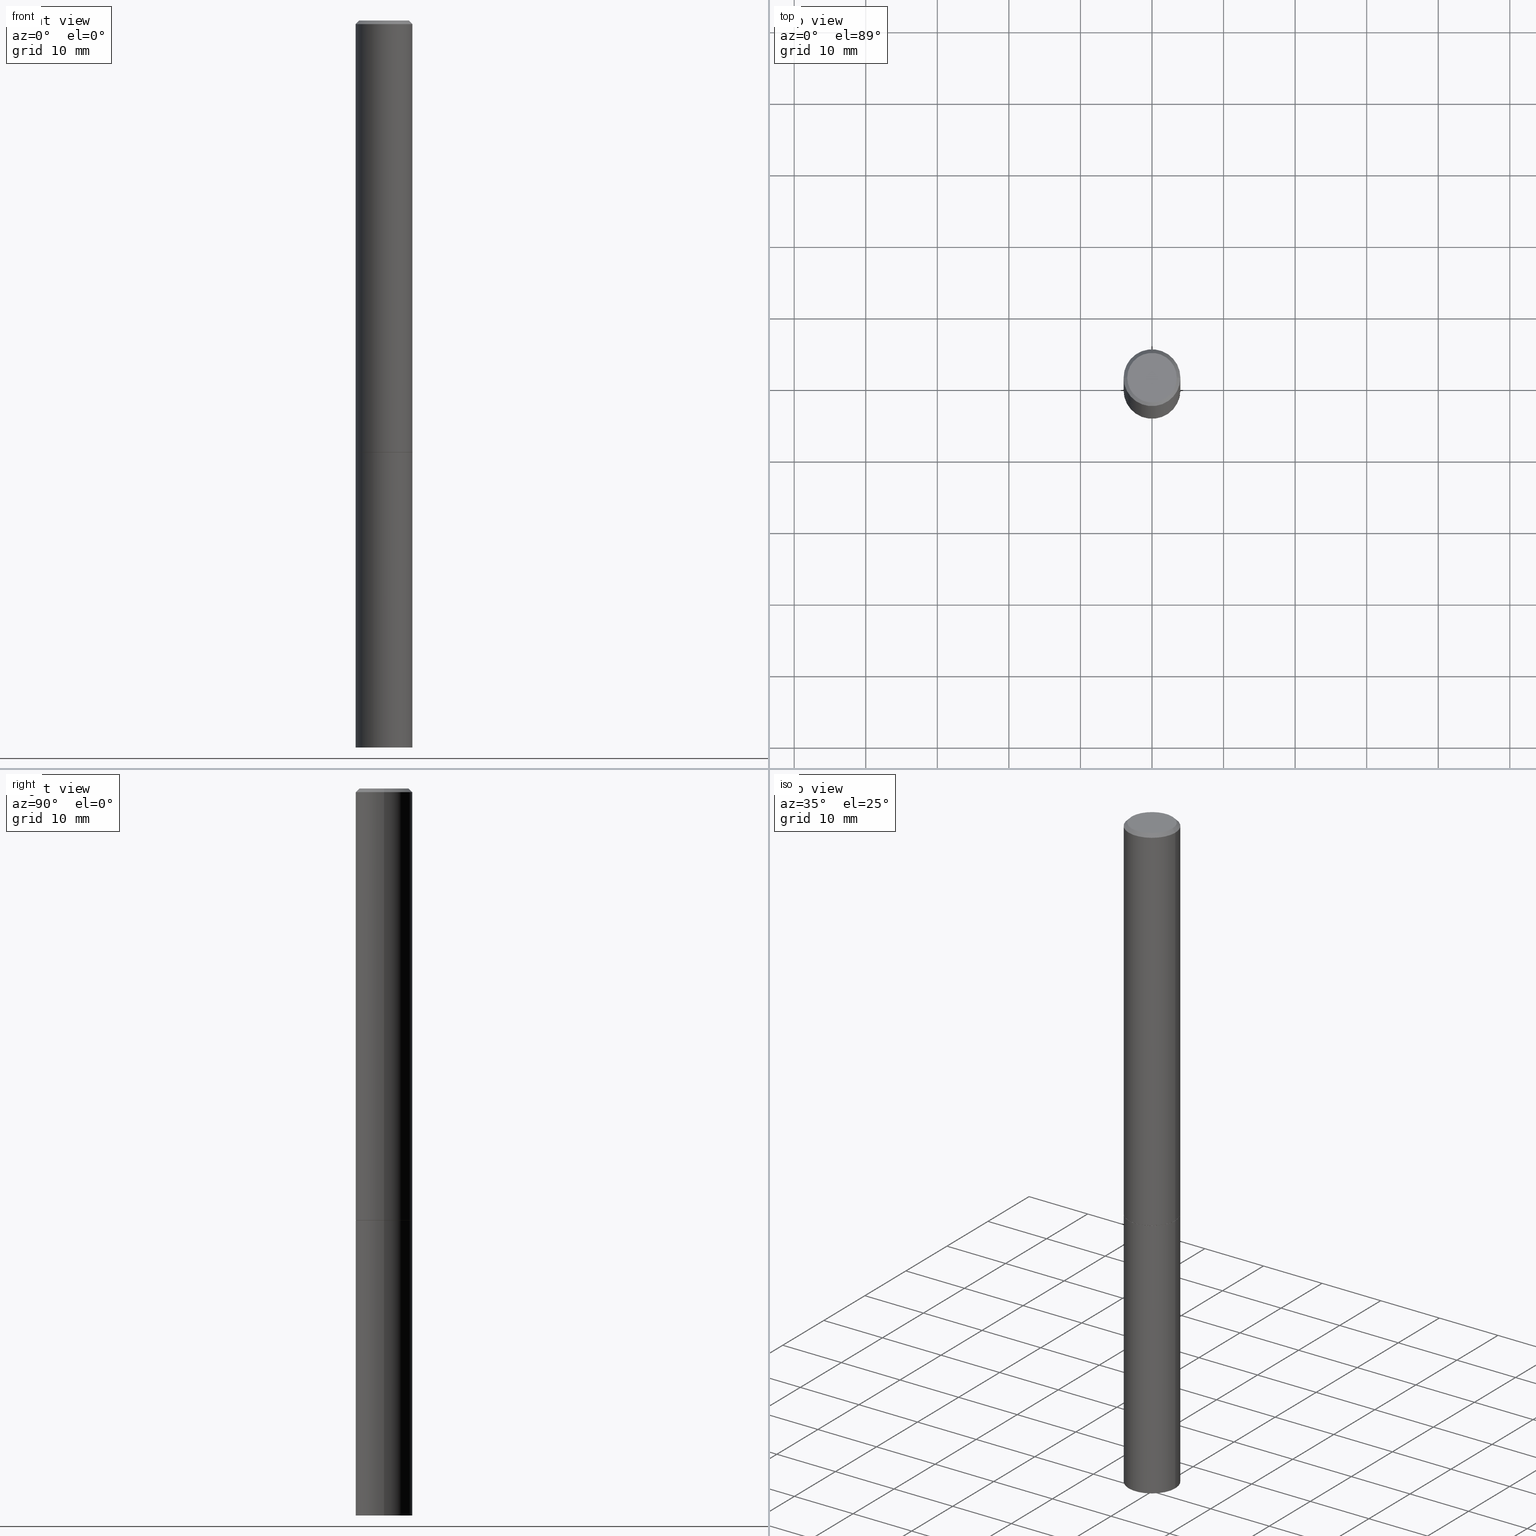
[diagram: canonical four-view strip — front | top / right | iso, engineering-drawing reading convention]
A machine part, canonical four-view strip (front | top / right | iso — engineering-drawing reading convention). The complete STEP part file that produces these views, byte-faithful:
ISO-10303-21;
HEADER;
FILE_DESCRIPTION (( 'STEP AP203' ),
    '1' );
FILE_NAME ('31883.STEP',
    '2023-03-21T20:35:39',
    ( '' ),
    ( '' ),
    'SwSTEP 2.0',
    'SolidWorks 2022',
    '' );
FILE_SCHEMA (( 'CONFIG_CONTROL_DESIGN' ));
ENDSEC;

DATA;
#1 = EDGE_LOOP ( 'NONE', ( #173, #229, #254, #176 ) ) ;
#2 = CARTESIAN_POINT ( 'NONE',  ( 5.807988414689699417E-29, -8.292268179752470118E-15, -2.375000000000000000 ) ) ;
#3 = CALENDAR_DATE ( 2023, 21, 3 ) ;
#4 = CONICAL_SURFACE ( 'NONE', #285, 751.2258538476485228, 1.518436449235072372 ) ;
#5 = DIRECTION ( 'NONE',  ( 1.000000000000000000, -6.982962677686266711E-15, 4.876176775795936353E-29 ) ) ;
#6 = ADVANCED_FACE ( 'NONE', ( #282 ), #321, .T. ) ;
#7 = LINE ( 'NONE', #181, #83 ) ;
#8 = EDGE_CURVE ( 'NONE', #362, #12, #125, .T. ) ;
#9 = DIRECTION ( 'NONE',  ( 2.445468806185136597E-29, -3.491481338843145583E-15, -1.000000000000000000 ) ) ;
#10 = EDGE_LOOP ( 'NONE', ( #29, #292, #360 ) ) ;
#11 = LINE ( 'NONE', #160, #216 ) ;
#12 = VERTEX_POINT ( 'NONE', #178 ) ;
#13 = LINE ( 'NONE', #117, #54 ) ;
#14 = APPROVAL_PERSON_ORGANIZATION ( #299, #59, #137 ) ;
#15 = CC_DESIGN_SECURITY_CLASSIFICATION ( #139, ( #50 ) ) ;
#16 = DIRECTION ( 'NONE',  ( -2.445468806185136597E-29, 3.491481338843145583E-15, 1.000000000000000000 ) ) ;
#17 = DIRECTION ( 'NONE',  ( 1.000000000000000000, -6.982962677686268288E-15, 0.000000000000000000 ) ) ;
#18 = DIRECTION ( 'NONE',  ( -0.7071067811865232589, 7.493145998870265808E-15, 0.7071067811865715536 ) ) ;
#19 = ORIENTED_EDGE ( 'NONE', *, *, #77, .T. ) ;
#20 =( CONVERSION_BASED_UNIT ( 'INCH', #325 ) LENGTH_UNIT ( ) NAMED_UNIT ( #339 ) );
#21 = ORIENTED_EDGE ( 'NONE', *, *, #153, .F. ) ;
#22 = DIRECTION ( 'NONE',  ( 1.000000000000000000, -6.982962677686266711E-15, 4.876176775795936353E-29 ) ) ;
#23 = CIRCLE ( 'NONE', #383, 0.1552499999999999991 ) ;
#24 = CLOSED_SHELL ( 'NONE', ( #100, #247, #264, #273, #49 ) ) ;
#25 = DIRECTION ( 'NONE',  ( -0.9986295347545742773, 6.790662755453662155E-15, -0.05233595624293820026 ) ) ;
#26 = APPROVAL_STATUS ( 'not_yet_approved' ) ;
#27 = APPLICATION_PROTOCOL_DEFINITION ( 'international standard', 'config_control_design', 1994, #316 ) ;
#28 = DIRECTION ( 'NONE',  ( 1.000000000000000000, -6.982962677686268288E-15, 0.000000000000000000 ) ) ;
#29 = ORIENTED_EDGE ( 'NONE', *, *, #122, .F. ) ;
#30 = CARTESIAN_POINT ( 'NONE',  ( -0.1562500000000000000, 1.110223024625156540E-15, -7.685836078523291160E-30 ) ) ;
#31 = CC_DESIGN_PERSON_AND_ORGANIZATION_ASSIGNMENT ( #38, #334, ( #50 ) ) ;
#32 = SECURITY_CLASSIFICATION_LEVEL ( 'unclassified' ) ;
#33 = FACE_OUTER_BOUND ( 'NONE', #382, .T. ) ;
#34 = CIRCLE ( 'NONE', #241, 0.1562500000000000000 ) ;
#35 = CC_DESIGN_APPROVAL ( #353, ( #139 ) ) ;
#36 = DIRECTION ( 'NONE',  ( -2.438088387897960049E-29, 3.491481338843145188E-15, 1.000000000000000000 ) ) ;
#37 = CONICAL_SURFACE ( 'NONE', #107, 0.1552499999999999991, 0.7853981633974141952 ) ;
#38 = PERSON_AND_ORGANIZATION ( #310, #204 ) ;
#39 = EDGE_CURVE ( 'NONE', #138, #132, #63, .T. ) ;
#40 =( GEOMETRIC_REPRESENTATION_CONTEXT ( 3 ) GLOBAL_UNCERTAINTY_ASSIGNED_CONTEXT ( ( #358 ) ) GLOBAL_UNIT_ASSIGNED_CONTEXT ( ( #20, #133, #111 ) ) REPRESENTATION_CONTEXT ( 'NONE', 'WORKASPACE' ) );
#41 = CARTESIAN_POINT ( 'NONE',  ( 0.000000000000000000, 0.000000000000000000, 0.000000000000000000 ) ) ;
#42 = PRODUCT ( '31883', '31883', '', ( #174 ) ) ;
#43 = ORIENTED_EDGE ( 'NONE', *, *, #332, .T. ) ;
#44 = CARTESIAN_POINT ( 'NONE',  ( 9.762053498228131430E-29, -1.393704315311519671E-14, -3.991811284487025713 ) ) ;
#45 = LINE ( 'NONE', #130, #348 ) ;
#46 = CARTESIAN_POINT ( 'NONE',  ( 0.000000000000000000, 0.000000000000000000, 0.000000000000000000 ) ) ;
#47 = DIRECTION ( 'NONE',  ( 1.000000000000000000, -6.982962677686262766E-15, 0.000000000000000000 ) ) ;
#48 = ORIENTED_EDGE ( 'NONE', *, *, #346, .T. ) ;
#49 = ADVANCED_FACE ( 'NONE', ( #33 ), #108, .F. ) ;
#50 = PRODUCT_DEFINITION_FORMATION_WITH_SPECIFIED_SOURCE ( 'ANY', '', #42, .NOT_KNOWN. ) ;
#51 = APPLICATION_PROTOCOL_DEFINITION ( 'international standard', 'config_control_design', 1994, #170 ) ;
#52 = LINE ( 'NONE', #213, #102 ) ;
#53 = ADVANCED_FACE ( 'NONE', ( #73 ), #235, .F. ) ;
#54 = VECTOR ( 'NONE', #25, 39.37007874015748854 ) ;
#55 = PERSON_AND_ORGANIZATION ( #310, #204 ) ;
#56 = APPROVAL_STATUS ( 'not_yet_approved' ) ;
#57 = CALENDAR_DATE ( 2023, 21, 3 ) ;
#58 = CARTESIAN_POINT ( 'NONE',  ( 2.914548548373064519E-19, -1.393733460796993625E-14, -3.991811284487025713 ) ) ;
#59 = APPROVAL ( #26, 'UNSPECIFIED' ) ;
#60 = COORDINATED_UNIVERSAL_TIME_OFFSET ( 5, 0, .BEHIND. ) ;
#61 = DIRECTION ( 'NONE',  ( -2.445468806185136597E-29, 3.491481338843145583E-15, 1.000000000000000000 ) ) ;
#62 = AXIS2_PLACEMENT_3D ( 'NONE', #123, #373, #161 ) ;
#63 = CIRCLE ( 'NONE', #298, 0.1562499999999997224 ) ;
#64 = EDGE_CURVE ( 'NONE', #132, #138, #288, .T. ) ;
#65 = DIRECTION ( 'NONE',  ( -2.445468806185136597E-29, 3.491481338843145583E-15, 1.000000000000000000 ) ) ;
#66 = ADVANCED_FACE ( 'NONE', ( #318 ), #37, .T. ) ;
#67 = CARTESIAN_POINT ( 'NONE',  ( 0.1562499999999997224, -1.503787816752438098E-14, -4.000000000000000000 ) ) ;
#68 = ORIENTED_EDGE ( 'NONE', *, *, #64, .T. ) ;
#69 = ADVANCED_FACE ( 'NONE', ( #159 ), #352, .F. ) ;
#70 = EDGE_LOOP ( 'NONE', ( #340, #118 ) ) ;
#71 = VECTOR ( 'NONE', #167, 39.37007874015748143 ) ;
#72 = CARTESIAN_POINT ( 'NONE',  ( 5.807988414689699417E-29, -8.292268179752470118E-15, -2.375000000000000000 ) ) ;
#73 = FACE_OUTER_BOUND ( 'NONE', #226, .T. ) ;
#74 = DIRECTION ( 'NONE',  ( 1.000000000000000000, -6.982962677686265922E-15, 4.876176775795935793E-29 ) ) ;
#75 = DIRECTION ( 'NONE',  ( -1.000000000000000000, 6.982962677686265922E-15, -4.876176775795935793E-29 ) ) ;
#76 = CARTESIAN_POINT ( 'NONE',  ( -0.1562499999999998612, 1.110223024625155554E-15, -7.685836078523284153E-30 ) ) ;
#77 = EDGE_CURVE ( 'NONE', #350, #175, #328, .T. ) ;
#78 = DIRECTION ( 'NONE',  ( 1.000000000000000000, -6.982962677686262766E-15, 0.000000000000000000 ) ) ;
#79 = AXIS2_PLACEMENT_3D ( 'NONE', #112, #236, #47 ) ;
#80 = FACE_OUTER_BOUND ( 'NONE', #94, .T. ) ;
#81 = DIRECTION ( 'NONE',  ( 1.000000000000000000, -6.982962677686266711E-15, 4.876176775795936353E-29 ) ) ;
#82 = CARTESIAN_POINT ( 'NONE',  ( 9.781875224740546387E-29, -1.396592535537258233E-14, -4.000000000000000000 ) ) ;
#83 = VECTOR ( 'NONE', #96, 39.37007874015748143 ) ;
#84 = CARTESIAN_POINT ( 'NONE',  ( 0.1362499999999997324, -1.038262645562516152E-15, 6.957025900226682464E-30 ) ) ;
#85 = AXIS2_PLACEMENT_3D ( 'NONE', #82, #347, #297 ) ;
#86 = DIRECTION ( 'NONE',  ( 1.000000000000000000, -6.982962677686268288E-15, 0.000000000000000000 ) ) ;
#87 =( LENGTH_UNIT ( ) NAMED_UNIT ( * ) SI_UNIT ( $, .METRE. ) );
#88 = DIRECTION ( 'NONE',  ( -2.445468806185136597E-29, 3.491481338843145583E-15, 1.000000000000000000 ) ) ;
#89 = ORIENTED_EDGE ( 'NONE', *, *, #281, .F. ) ;
#90 = CC_DESIGN_DATE_AND_TIME_ASSIGNMENT ( #184, #95, ( #139 ) ) ;
#91 = CYLINDRICAL_SURFACE ( 'NONE', #129, 0.1562500000000000000 ) ;
#92 = CIRCLE ( 'NONE', #183, 0.1562500000000000000 ) ;
#93 = PERSON_AND_ORGANIZATION ( #310, #204 ) ;
#94 = EDGE_LOOP ( 'NONE', ( #301, #279, #89, #147 ) ) ;
#95 = DATE_TIME_ROLE ( 'classification_date' ) ;
#96 = DIRECTION ( 'NONE',  ( -0.7071067811865467956, 2.468850131082249172E-15, -0.7071067811865482389 ) ) ;
#97 = ORIENTED_EDGE ( 'NONE', *, *, #345, .T. ) ;
#98 = VERTEX_POINT ( 'NONE', #44 ) ;
#99 = DIRECTION ( 'NONE',  ( 1.000000000000000000, -6.982962677686266711E-15, 4.876176775795936353E-29 ) ) ;
#100 = ADVANCED_FACE ( 'NONE', ( #80 ), #199, .T. ) ;
#101 = CALENDAR_DATE ( 2023, 21, 3 ) ;
#102 = VECTOR ( 'NONE', #124, 39.37007874015748143 ) ;
#103 = CARTESIAN_POINT ( 'NONE',  ( -0.1362499999999997324, 9.863434782231830429E-16, -6.775751096333125871E-30 ) ) ;
#104 = ORIENTED_EDGE ( 'NONE', *, *, #381, .F. ) ;
#105 = APPROVAL ( #56, 'UNSPECIFIED' ) ;
#106 = VECTOR ( 'NONE', #315, 39.37007874015748143 ) ;
#107 = AXIS2_PLACEMENT_3D ( 'NONE', #127, #252, #17 ) ;
#108 = PLANE ( 'NONE',  #120 ) ;
#109 = CARTESIAN_POINT ( 'NONE',  ( 5.805542945883513814E-29, -8.288776698413627111E-15, -2.373999999999999666 ) ) ;
#110 = ORIENTED_EDGE ( 'NONE', *, *, #346, .F. ) ;
#111 =( NAMED_UNIT ( * ) SI_UNIT ( $, .STERADIAN. ) SOLID_ANGLE_UNIT ( ) );
#112 = CARTESIAN_POINT ( 'NONE',  ( 5.807988414689699417E-29, -8.292268179752470118E-15, -2.375000000000000000 ) ) ;
#113 = CARTESIAN_POINT ( 'NONE',  ( -0.1562500000000000000, -1.001887374293736968E-14, -2.375000000000000000 ) ) ;
#114 = CARTESIAN_POINT ( 'NONE',  ( 5.807988414689699417E-29, -8.292268179752470118E-15, -2.375000000000000000 ) ) ;
#115 = CC_DESIGN_DATE_AND_TIME_ASSIGNMENT ( #151, #180, ( #239 ) ) ;
#116 = CARTESIAN_POINT ( 'NONE',  ( 0.1552499999999999991, -9.376373135463264066E-15, -2.375000000000000000 ) ) ;
#117 = CARTESIAN_POINT ( 'NONE',  ( -2.914548546420694445E-19, -1.393733460796993625E-14, -3.991811284487025713 ) ) ;
#118 = ORIENTED_EDGE ( 'NONE', *, *, #363, .T. ) ;
#119 = PERSON_AND_ORGANIZATION ( #310, #204 ) ;
#120 = AXIS2_PLACEMENT_3D ( 'NONE', #224, #230, #322 ) ;
#121 = DIRECTION ( 'NONE',  ( 1.000000000000000000, -6.982962677686262766E-15, 0.000000000000000000 ) ) ;
#122 = EDGE_CURVE ( 'NONE', #98, #175, #368, .T. ) ;
#123 = CARTESIAN_POINT ( 'NONE',  ( 0.000000000000000000, 0.000000000000000000, 0.000000000000000000 ) ) ;
#124 = DIRECTION ( 'NONE',  ( 0.7071067811865467956, -7.319954787623254468E-15, -0.7071067811865482389 ) ) ;
#125 = CIRCLE ( 'NONE', #349, 0.1552499999999999991 ) ;
#126 = CYLINDRICAL_SURFACE ( 'NONE', #62, 0.1562499999999998612 ) ;
#127 = CARTESIAN_POINT ( 'NONE',  ( 5.807988414689699417E-29, -8.292268179752470118E-15, -2.375000000000000000 ) ) ;
#128 = ADVANCED_FACE ( 'NONE', ( #244 ), #126, .T. ) ;
#129 = AXIS2_PLACEMENT_3D ( 'NONE', #41, #166, #22 ) ;
#130 = CARTESIAN_POINT ( 'NONE',  ( -0.1552499999999999991, -7.189150582484915374E-15, -2.375000000000000000 ) ) ;
#131 = ORIENTED_EDGE ( 'NONE', *, *, #64, .F. ) ;
#132 = VERTEX_POINT ( 'NONE', #283 ) ;
#133 =( NAMED_UNIT ( * ) PLANE_ANGLE_UNIT ( ) SI_UNIT ( $, .RADIAN. ) );
#134 = DIRECTION ( 'NONE',  ( -2.445468806185136597E-29, 3.491481338843145583E-15, 1.000000000000000000 ) ) ;
#135 = ORIENTED_EDGE ( 'NONE', *, *, #8, .T. ) ;
#136 = CARTESIAN_POINT ( 'NONE',  ( 5.807988414689699417E-29, -8.292268179752470118E-15, -2.375000000000000000 ) ) ;
#137 = APPROVAL_ROLE ( '' ) ;
#138 = VERTEX_POINT ( 'NONE', #191 ) ;
#139 = SECURITY_CLASSIFICATION ( '', '', #32 ) ;
#140 = CARTESIAN_POINT ( 'NONE',  ( 5.805542945883513814E-29, -8.288776698413627111E-15, -2.373999999999999666 ) ) ;
#141 = DIRECTION ( 'NONE',  ( 1.000000000000000000, -6.982962677686267499E-15, 0.000000000000000000 ) ) ;
#142 = PERSON_AND_ORGANIZATION_ROLE ( 'classification_officer' ) ;
#143 = ORIENTED_EDGE ( 'NONE', *, *, #311, .T. ) ;
#144 = EDGE_CURVE ( 'NONE', #245, #132, #11, .T. ) ;
#145 = DIRECTION ( 'NONE',  ( -1.000000000000000000, 6.982962677686266711E-15, 0.000000000000000000 ) ) ;
#146 = DIRECTION ( 'NONE',  ( -2.445468806185136877E-29, 3.491481338843145188E-15, 1.000000000000000000 ) ) ;
#147 = ORIENTED_EDGE ( 'NONE', *, *, #345, .F. ) ;
#148 = APPROVAL_DATE_TIME ( #156, #59 ) ;
#149 = ORIENTED_EDGE ( 'NONE', *, *, #144, .F. ) ;
#150 = CIRCLE ( 'NONE', #205, 0.1562500000000000000 ) ;
#151 = DATE_AND_TIME ( #101, #169 ) ;
#152 = DIRECTION ( 'NONE',  ( -2.445468806185136597E-29, 3.491481338843145583E-15, 1.000000000000000000 ) ) ;
#153 = EDGE_CURVE ( 'NONE', #168, #138, #7, .T. ) ;
#154 = APPROVAL_STATUS ( 'not_yet_approved' ) ;
#155 = MANIFOLD_SOLID_BREP ( 'Body-Move/Copy2[1]', #24 ) ;
#156 = DATE_AND_TIME ( #336, #320 ) ;
#157 = AXIS2_PLACEMENT_3D ( 'NONE', #355, #201, #171 ) ;
#158 = CARTESIAN_POINT ( 'NONE',  ( 5.807988414689699417E-29, -8.292268179752470118E-15, -2.375000000000000000 ) ) ;
#159 = FACE_OUTER_BOUND ( 'NONE', #70, .T. ) ;
#160 = CARTESIAN_POINT ( 'NONE',  ( 0.1562499999999998612, -1.091087918388478187E-15, 7.619026212181143371E-30 ) ) ;
#161 = DIRECTION ( 'NONE',  ( 1.000000000000000000, -6.982962677686266711E-15, 4.876176775795936353E-29 ) ) ;
#162 = EDGE_CURVE ( 'NONE', #335, #132, #52, .T. ) ;
#163 = CARTESIAN_POINT ( 'NONE',  ( 9.781875224740546387E-29, -1.396592535537258233E-14, -4.000000000000000000 ) ) ;
#164 = CONICAL_SURFACE ( 'NONE', #157, 0.1562499999999997224, 0.7853981633974472798 ) ;
#165 = EDGE_LOOP ( 'NONE', ( #388, #240, #68, #21 ) ) ;
#166 = DIRECTION ( 'NONE',  ( -2.445468806185136597E-29, 3.491481338843145583E-15, 1.000000000000000000 ) ) ;
#167 = DIRECTION ( 'NONE',  ( -2.445468806185136877E-29, 3.491481338843145188E-15, 1.000000000000000000 ) ) ;
#168 = VERTEX_POINT ( 'NONE', #103 ) ;
#169 = LOCAL_TIME ( 16, 35, 39.00000000000000000, #60 ) ;
#170 = APPLICATION_CONTEXT ( 'configuration controlled 3d designs of mechanical parts and assemblies' ) ;
#171 = DIRECTION ( 'NONE',  ( -1.000000000000000000, 6.982962677686267499E-15, 0.000000000000000000 ) ) ;
#172 = CARTESIAN_POINT ( 'NONE',  ( 0.000000000000000000, 0.000000000000000000, 0.000000000000000000 ) ) ;
#173 = ORIENTED_EDGE ( 'NONE', *, *, #196, .F. ) ;
#174 = MECHANICAL_CONTEXT ( 'NONE', #170, 'mechanical' ) ;
#175 = VERTEX_POINT ( 'NONE', #67 ) ;
#176 = ORIENTED_EDGE ( 'NONE', *, *, #39, .F. ) ;
#177 = EDGE_LOOP ( 'NONE', ( #261, #143, #48, #263 ) ) ;
#178 = CARTESIAN_POINT ( 'NONE',  ( -0.1552499999999999991, -7.183852128136692972E-15, -2.375000000000000000 ) ) ;
#179 = APPROVAL_DATE_TIME ( #269, #105 ) ;
#180 = DATE_TIME_ROLE ( 'creation_date' ) ;
#181 = CARTESIAN_POINT ( 'NONE',  ( -0.1562499999999997224, 1.021258291611614298E-15, -0.02000000000000003511 ) ) ;
#182 = CARTESIAN_POINT ( 'NONE',  ( 0.000000000000000000, 0.000000000000000000, 0.000000000000000000 ) ) ;
#183 = AXIS2_PLACEMENT_3D ( 'NONE', #163, #16, #78 ) ;
#184 = DATE_AND_TIME ( #3, #371 ) ;
#185 = DIRECTION ( 'NONE',  ( -2.445468806185136877E-29, 3.491481338843145188E-15, 1.000000000000000000 ) ) ;
#186 = APPROVAL_ROLE ( '' ) ;
#187 = CONICAL_SURFACE ( 'NONE', #326, 0.1552499999999999991, 0.7853981633974141952 ) ;
#188 = ORIENTED_EDGE ( 'NONE', *, *, #8, .F. ) ;
#189 = CLOSED_SHELL ( 'NONE', ( #66, #128, #379, #255, #6, #231, #53, #69 ) ) ;
#190 = DIRECTION ( 'NONE',  ( -2.445468806185136597E-29, 3.491481338843145583E-15, 1.000000000000000000 ) ) ;
#191 = CARTESIAN_POINT ( 'NONE',  ( -0.1562499999999997224, 1.021258291611614298E-15, -0.02000000000000003511 ) ) ;
#192 = PRODUCT_RELATED_PRODUCT_CATEGORY ( 'detail', '', ( #42 ) ) ;
#193 = CARTESIAN_POINT ( 'NONE',  ( 4.890937612370281041E-31, -6.982962677686302702E-17, -0.02000000000000003511 ) ) ;
#194 = CARTESIAN_POINT ( 'NONE',  ( 0.000000000000000000, 0.000000000000000000, 0.000000000000000000 ) ) ;
#195 = DIRECTION ( 'NONE',  ( -2.445468806185136597E-29, 3.491481338843145583E-15, 1.000000000000000000 ) ) ;
#196 = EDGE_CURVE ( 'NONE', #203, #138, #312, .T. ) ;
#197 = AXIS2_PLACEMENT_3D ( 'NONE', #260, #134, #81 ) ;
#198 = ORIENTED_EDGE ( 'NONE', *, *, #153, .T. ) ;
#199 = CYLINDRICAL_SURFACE ( 'NONE', #331, 0.1562500000000000000 ) ;
#200 = LINE ( 'NONE', #323, #71 ) ;
#201 = DIRECTION ( 'NONE',  ( 2.445468806185136597E-29, -3.491481338843145583E-15, -1.000000000000000000 ) ) ;
#202 = DIRECTION ( 'NONE',  ( -1.000000000000000000, 6.982962677686267499E-15, 0.000000000000000000 ) ) ;
#203 = VERTEX_POINT ( 'NONE', #250 ) ;
#204 = ORGANIZATION ( 'UNSPECIFIED', 'UNSPECIFIED', '' ) ;
#205 = AXIS2_PLACEMENT_3D ( 'NONE', #72, #190, #121 ) ;
#206 = EDGE_CURVE ( 'NONE', #350, #367, #270, .T. ) ;
#207 = AXIS2_PLACEMENT_3D ( 'NONE', #158, #36, #74 ) ;
#208 = DIRECTION ( 'NONE',  ( 1.000000000000000000, 0.000000000000000000, 0.000000000000000000 ) ) ;
#209 = ORIENTED_EDGE ( 'NONE', *, *, #77, .F. ) ;
#210 = DIRECTION ( 'NONE',  ( 1.000000000000000000, -6.982962677686262766E-15, 0.000000000000000000 ) ) ;
#211 = ORIENTED_EDGE ( 'NONE', *, *, #237, .T. ) ;
#212 = DIRECTION ( 'NONE',  ( 0.7071067811865232589, -2.468850131082003836E-15, 0.7071067811865715536 ) ) ;
#213 = CARTESIAN_POINT ( 'NONE',  ( 0.1562499999999997224, -1.141782438928662935E-15, -0.02000000000000003511 ) ) ;
#214 = ORIENTED_EDGE ( 'NONE', *, *, #381, .T. ) ;
#215 = FACE_OUTER_BOUND ( 'NONE', #287, .T. ) ;
#216 = VECTOR ( 'NONE', #185, 39.37007874015748143 ) ;
#217 = COORDINATED_UNIVERSAL_TIME_OFFSET ( 5, 0, .BEHIND. ) ;
#218 = SHAPE_DEFINITION_REPRESENTATION ( #317, #222 ) ;
#219 = CIRCLE ( 'NONE', #374, 0.1362499999999997324 ) ;
#220 = APPROVAL_ROLE ( '' ) ;
#221 = PERSON_AND_ORGANIZATION ( #310, #204 ) ;
#222 = ADVANCED_BREP_SHAPE_REPRESENTATION ( '31883', ( #155, #289, #365 ), #40 ) ;
#223 = EDGE_LOOP ( 'NONE', ( #135, #211, #329, #110 ) ) ;
#224 = CARTESIAN_POINT ( 'NONE',  ( 1.091087918388537155E-15, 0.1562499999999917011, -2.375000000000000444 ) ) ;
#225 = AXIS2_PLACEMENT_3D ( 'NONE', #227, #238, #145 ) ;
#226 = EDGE_LOOP ( 'NONE', ( #188, #314 ) ) ;
#227 = CARTESIAN_POINT ( 'NONE',  ( 1.060401494324985939E-27, -1.513972298380150215E-13, -43.36189002464450226 ) ) ;
#228 = LINE ( 'NONE', #266, #280 ) ;
#229 = ORIENTED_EDGE ( 'NONE', *, *, #342, .T. ) ;
#230 = DIRECTION ( 'NONE',  ( 2.438088387897960049E-29, -3.491481338843145188E-15, -1.000000000000000000 ) ) ;
#231 = ADVANCED_FACE ( 'NONE', ( #275 ), #187, .T. ) ;
#232 = FACE_OUTER_BOUND ( 'NONE', #10, .T. ) ;
#233 = EDGE_CURVE ( 'NONE', #175, #350, #92, .T. ) ;
#234 = APPROVAL_PERSON_ORGANIZATION ( #119, #353, #186 ) ;
#235 = PLANE ( 'NONE',  #207 ) ;
#236 = DIRECTION ( 'NONE',  ( -2.445468806185136597E-29, 3.491481338843145583E-15, 1.000000000000000000 ) ) ;
#237 = EDGE_CURVE ( 'NONE', #12, #203, #45, .T. ) ;
#238 = DIRECTION ( 'NONE',  ( 2.445468806185136597E-29, -3.491481338843145583E-15, -1.000000000000000000 ) ) ;
#239 = PRODUCT_DEFINITION ( 'UNKNOWN', '', #50, #338 ) ;
#240 = ORIENTED_EDGE ( 'NONE', *, *, #162, .T. ) ;
#241 = AXIS2_PLACEMENT_3D ( 'NONE', #140, #257, #356 ) ;
#242 = COORDINATED_UNIVERSAL_TIME_OFFSET ( 5, 0, .BEHIND. ) ;
#243 = ORIENTED_EDGE ( 'NONE', *, *, #162, .F. ) ;
#244 = FACE_OUTER_BOUND ( 'NONE', #327, .T. ) ;
#245 = VERTEX_POINT ( 'NONE', #341 ) ;
#246 = COORDINATED_UNIVERSAL_TIME_OFFSET ( 5, 0, .BEHIND. ) ;
#247 = ADVANCED_FACE ( 'NONE', ( #278 ), #4, .F. ) ;
#248 = CIRCLE ( 'NONE', #197, 0.1362499999999997324 ) ;
#249 = CC_DESIGN_PERSON_AND_ORGANIZATION_ASSIGNMENT ( #221, #142, ( #139 ) ) ;
#250 = CARTESIAN_POINT ( 'NONE',  ( -0.1562500000000000000, -3.069080137970085114E-15, -2.373999999999999666 ) ) ;
#251 = CC_DESIGN_APPROVAL ( #59, ( #239 ) ) ;
#252 = DIRECTION ( 'NONE',  ( -2.445468806185136597E-29, 3.491481338843145583E-15, 1.000000000000000000 ) ) ;
#253 = DIRECTION ( 'NONE',  ( 1.000000000000000000, -6.982962677686267499E-15, 0.000000000000000000 ) ) ;
#254 = ORIENTED_EDGE ( 'NONE', *, *, #144, .T. ) ;
#255 = ADVANCED_FACE ( 'NONE', ( #376 ), #164, .T. ) ;
#256 = EDGE_LOOP ( 'NONE', ( #377, #268, #209 ) ) ;
#257 = DIRECTION ( 'NONE',  ( -2.445468806185136597E-29, 3.491481338843145583E-15, 1.000000000000000000 ) ) ;
#258 = CIRCLE ( 'NONE', #302, 0.1562500000000000000 ) ;
#259 = ORIENTED_EDGE ( 'NONE', *, *, #196, .T. ) ;
#260 = CARTESIAN_POINT ( 'NONE',  ( 0.000000000000000000, 0.000000000000000000, 0.000000000000000000 ) ) ;
#261 = ORIENTED_EDGE ( 'NONE', *, *, #237, .F. ) ;
#262 = CARTESIAN_POINT ( 'NONE',  ( -0.1562499999999997224, -1.287483743698410395E-14, -4.000000000000000000 ) ) ;
#263 = ORIENTED_EDGE ( 'NONE', *, *, #342, .F. ) ;
#264 = ADVANCED_FACE ( 'NONE', ( #232 ), #378, .F. ) ;
#265 = CONICAL_SURFACE ( 'NONE', #343, 0.1562499999999997224, 0.7853981633974472798 ) ;
#266 = CARTESIAN_POINT ( 'NONE',  ( 0.1552499999999999991, -9.376373135463264066E-15, -2.375000000000000000 ) ) ;
#267 = DIRECTION ( 'NONE',  ( -2.445468806185136597E-29, 3.491481338843145583E-15, 1.000000000000000000 ) ) ;
#268 = ORIENTED_EDGE ( 'NONE', *, *, #122, .T. ) ;
#269 = DATE_AND_TIME ( #305, #357 ) ;
#270 = LINE ( 'NONE', #30, #313 ) ;
#271 = CC_DESIGN_APPROVAL ( #105, ( #50 ) ) ;
#272 = AXIS2_PLACEMENT_3D ( 'NONE', #380, #293, #75 ) ;
#273 = ADVANCED_FACE ( 'NONE', ( #215 ), #91, .T. ) ;
#274 = DIRECTION ( 'NONE',  ( 0.9986295347545742773, -7.033825938272001856E-15, -0.05233595624293820026 ) ) ;
#275 = FACE_OUTER_BOUND ( 'NONE', #177, .T. ) ;
#276 = EDGE_CURVE ( 'NONE', #98, #350, #13, .T. ) ;
#277 = PERSON_AND_ORGANIZATION ( #310, #204 ) ;
#278 = FACE_OUTER_BOUND ( 'NONE', #256, .T. ) ;
#279 = ORIENTED_EDGE ( 'NONE', *, *, #206, .T. ) ;
#280 = VECTOR ( 'NONE', #212, 39.37007874015748854 ) ;
#281 = EDGE_CURVE ( 'NONE', #351, #367, #150, .T. ) ;
#282 = FACE_OUTER_BOUND ( 'NONE', #1, .T. ) ;
#283 = CARTESIAN_POINT ( 'NONE',  ( 0.1562499999999997224, -1.141782438928662935E-15, -0.02000000000000003511 ) ) ;
#284 = CARTESIAN_POINT ( 'NONE',  ( 1.060401494324985939E-27, -1.513972298380150215E-13, -43.36189002464450226 ) ) ;
#285 = AXIS2_PLACEMENT_3D ( 'NONE', #284, #9, #290 ) ;
#286 = LOCAL_TIME ( 16, 35, 39.00000000000000000, #242 ) ;
#287 = EDGE_LOOP ( 'NONE', ( #319, #19, #97, #104 ) ) ;
#288 = CIRCLE ( 'NONE', #344, 0.1562499999999997224 ) ;
#289 = MANIFOLD_SOLID_BREP ( 'Body-Move/Copy2[2]', #189 ) ;
#290 = DIRECTION ( 'NONE',  ( -1.000000000000000000, 6.982962677686266711E-15, 0.000000000000000000 ) ) ;
#291 = DIRECTION ( 'NONE',  ( 0.000000000000000000, 0.000000000000000000, 1.000000000000000000 ) ) ;
#292 = ORIENTED_EDGE ( 'NONE', *, *, #276, .T. ) ;
#293 = DIRECTION ( 'NONE',  ( 2.438088387897960049E-29, -3.491481338843145188E-15, -1.000000000000000000 ) ) ;
#294 = CC_DESIGN_PERSON_AND_ORGANIZATION_ASSIGNMENT ( #55, #364, ( #239 ) ) ;
#295 = DIRECTION ( 'NONE',  ( 2.445468806185136597E-29, -3.491481338843145583E-15, -1.000000000000000000 ) ) ;
#296 = CIRCLE ( 'NONE', #79, 0.1562500000000000000 ) ;
#297 = DIRECTION ( 'NONE',  ( 1.000000000000000000, -6.982962677686262766E-15, 0.000000000000000000 ) ) ;
#298 = AXIS2_PLACEMENT_3D ( 'NONE', #306, #375, #141 ) ;
#299 = PERSON_AND_ORGANIZATION ( #310, #204 ) ;
#300 = PERSON_AND_ORGANIZATION ( #310, #204 ) ;
#301 = ORIENTED_EDGE ( 'NONE', *, *, #233, .T. ) ;
#302 = AXIS2_PLACEMENT_3D ( 'NONE', #109, #387, #210 ) ;
#303 = AXIS2_PLACEMENT_3D ( 'NONE', #46, #267, #304 ) ;
#304 = DIRECTION ( 'NONE',  ( 1.000000000000000000, -6.982962677686266711E-15, 4.876176775795936353E-29 ) ) ;
#305 = CALENDAR_DATE ( 2023, 21, 3 ) ;
#306 = CARTESIAN_POINT ( 'NONE',  ( 4.890937612370281041E-31, -6.982962677686302702E-17, -0.02000000000000003511 ) ) ;
#307 = APPROVAL_PERSON_ORGANIZATION ( #277, #105, #220 ) ;
#308 = EDGE_CURVE ( 'NONE', #168, #335, #219, .T. ) ;
#309 = DIRECTION ( 'NONE',  ( 1.000000000000000000, -6.982962677686268288E-15, 0.000000000000000000 ) ) ;
#310 = PERSON ( 'UNSPECIFIED', 'UNSPECIFIED', 'UNSPECIFIED', ('UNSPECIFIED'), ('UNSPECIFIED'), ('UNSPECIFIED') ) ;
#311 = EDGE_CURVE ( 'NONE', #12, #362, #23, .T. ) ;
#312 = LINE ( 'NONE', #76, #106 ) ;
#313 = VECTOR ( 'NONE', #146, 39.37007874015748143 ) ;
#314 = ORIENTED_EDGE ( 'NONE', *, *, #311, .F. ) ;
#315 = DIRECTION ( 'NONE',  ( -2.445468806185136877E-29, 3.491481338843145188E-15, 1.000000000000000000 ) ) ;
#316 = APPLICATION_CONTEXT ( 'configuration controlled 3d designs of mechanical parts and assemblies' ) ;
#317 = PRODUCT_DEFINITION_SHAPE ( 'NONE', 'NONE',  #239 ) ;
#318 = FACE_OUTER_BOUND ( 'NONE', #223, .T. ) ;
#319 = ORIENTED_EDGE ( 'NONE', *, *, #206, .F. ) ;
#320 = LOCAL_TIME ( 16, 35, 39.00000000000000000, #389 ) ;
#321 = CYLINDRICAL_SURFACE ( 'NONE', #303, 0.1562499999999998612 ) ;
#322 = DIRECTION ( 'NONE',  ( -1.000000000000000000, 6.982962677686265922E-15, -4.876176775795935793E-29 ) ) ;
#323 = CARTESIAN_POINT ( 'NONE',  ( 0.1562500000000000000, -1.091087918388479174E-15, 7.619026212181150377E-30 ) ) ;
#324 = CC_DESIGN_PERSON_AND_ORGANIZATION_ASSIGNMENT ( #300, #384, ( #42 ) ) ;
#325 = LENGTH_MEASURE_WITH_UNIT ( LENGTH_MEASURE( 0.02539999999999999897 ), #87 );
#326 = AXIS2_PLACEMENT_3D ( 'NONE', #114, #88, #86 ) ;
#327 = EDGE_LOOP ( 'NONE', ( #43, #259, #131, #149 ) ) ;
#328 = CIRCLE ( 'NONE', #85, 0.1562500000000000000 ) ;
#329 = ORIENTED_EDGE ( 'NONE', *, *, #332, .F. ) ;
#330 = ORIENTED_EDGE ( 'NONE', *, *, #39, .T. ) ;
#331 = AXIS2_PLACEMENT_3D ( 'NONE', #194, #152, #99 ) ;
#332 = EDGE_CURVE ( 'NONE', #245, #203, #258, .T. ) ;
#333 = PERSON_AND_ORGANIZATION_ROLE ( 'design_supplier' ) ;
#334 = PERSON_AND_ORGANIZATION_ROLE ( 'creator' ) ;
#335 = VERTEX_POINT ( 'NONE', #84 ) ;
#336 = CALENDAR_DATE ( 2023, 21, 3 ) ;
#337 = VECTOR ( 'NONE', #274, 39.37007874015748854 ) ;
#338 = DESIGN_CONTEXT ( 'detailed design', #316, 'design' ) ;
#339 = DIMENSIONAL_EXPONENTS ( 1.000000000000000000, 0.000000000000000000, 0.000000000000000000, 0.000000000000000000, 0.000000000000000000, 0.000000000000000000, 0.000000000000000000 ) ;
#340 = ORIENTED_EDGE ( 'NONE', *, *, #308, .T. ) ;
#341 = CARTESIAN_POINT ( 'NONE',  ( 0.1562500000000000000, -9.379864616802105495E-15, -2.373999999999999666 ) ) ;
#342 = EDGE_CURVE ( 'NONE', #203, #245, #34, .T. ) ;
#343 = AXIS2_PLACEMENT_3D ( 'NONE', #359, #295, #202 ) ;
#344 = AXIS2_PLACEMENT_3D ( 'NONE', #193, #195, #253 ) ;
#345 = EDGE_CURVE ( 'NONE', #175, #351, #200, .T. ) ;
#346 = EDGE_CURVE ( 'NONE', #362, #245, #228, .T. ) ;
#347 = DIRECTION ( 'NONE',  ( -2.445468806185136597E-29, 3.491481338843145583E-15, 1.000000000000000000 ) ) ;
#348 = VECTOR ( 'NONE', #18, 39.37007874015748854 ) ;
#349 = AXIS2_PLACEMENT_3D ( 'NONE', #2, #65, #309 ) ;
#350 = VERTEX_POINT ( 'NONE', #262 ) ;
#351 = VERTEX_POINT ( 'NONE', #361 ) ;
#352 = PLANE ( 'NONE',  #272 ) ;
#353 = APPROVAL ( #154, 'UNSPECIFIED' ) ;
#354 = FACE_OUTER_BOUND ( 'NONE', #165, .T. ) ;
#355 = CARTESIAN_POINT ( 'NONE',  ( 4.890937612370281041E-31, -6.982962677686302702E-17, -0.02000000000000003511 ) ) ;
#356 = DIRECTION ( 'NONE',  ( 1.000000000000000000, -6.982962677686262766E-15, 0.000000000000000000 ) ) ;
#357 = LOCAL_TIME ( 16, 35, 39.00000000000000000, #217 ) ;
#358 = UNCERTAINTY_MEASURE_WITH_UNIT (LENGTH_MEASURE( 1.000000000000000082E-05 ), #20, 'distance_accuracy_value', 'NONE');
#359 = CARTESIAN_POINT ( 'NONE',  ( 4.890937612370281041E-31, -6.982962677686302702E-17, -0.02000000000000003511 ) ) ;
#360 = ORIENTED_EDGE ( 'NONE', *, *, #233, .F. ) ;
#361 = CARTESIAN_POINT ( 'NONE',  ( 0.1562500000000000000, -9.383356098140948502E-15, -2.375000000000000000 ) ) ;
#362 = VERTEX_POINT ( 'NONE', #116 ) ;
#363 = EDGE_CURVE ( 'NONE', #335, #168, #248, .T. ) ;
#364 = PERSON_AND_ORGANIZATION_ROLE ( 'creator' ) ;
#365 = AXIS2_PLACEMENT_3D ( 'NONE', #172, #291, #208 ) ;
#366 = APPROVAL_DATE_TIME ( #370, #353 ) ;
#367 = VERTEX_POINT ( 'NONE', #113 ) ;
#368 = LINE ( 'NONE', #58, #337 ) ;
#369 = ORIENTED_EDGE ( 'NONE', *, *, #281, .T. ) ;
#370 = DATE_AND_TIME ( #57, #286 ) ;
#371 = LOCAL_TIME ( 16, 35, 39.00000000000000000, #246 ) ;
#372 = CC_DESIGN_PERSON_AND_ORGANIZATION_ASSIGNMENT ( #93, #333, ( #50 ) ) ;
#373 = DIRECTION ( 'NONE',  ( -2.445468806185136597E-29, 3.491481338843145583E-15, 1.000000000000000000 ) ) ;
#374 = AXIS2_PLACEMENT_3D ( 'NONE', #182, #61, #5 ) ;
#375 = DIRECTION ( 'NONE',  ( -2.445468806185136597E-29, 3.491481338843145583E-15, 1.000000000000000000 ) ) ;
#376 = FACE_OUTER_BOUND ( 'NONE', #385, .T. ) ;
#377 = ORIENTED_EDGE ( 'NONE', *, *, #276, .F. ) ;
#378 = CONICAL_SURFACE ( 'NONE', #225, 751.2258538476485228, 1.518436449235072372 ) ;
#379 = ADVANCED_FACE ( 'NONE', ( #354 ), #265, .T. ) ;
#380 = CARTESIAN_POINT ( 'NONE',  ( 9.514286648347519855E-16, 0.1362499999999997324, -4.757143324173776691E-16 ) ) ;
#381 = EDGE_CURVE ( 'NONE', #367, #351, #296, .T. ) ;
#382 = EDGE_LOOP ( 'NONE', ( #369, #214 ) ) ;
#383 = AXIS2_PLACEMENT_3D ( 'NONE', #136, #386, #28 ) ;
#384 = PERSON_AND_ORGANIZATION_ROLE ( 'design_owner' ) ;
#385 = EDGE_LOOP ( 'NONE', ( #243, #390, #198, #330 ) ) ;
#386 = DIRECTION ( 'NONE',  ( -2.445468806185136597E-29, 3.491481338843145583E-15, 1.000000000000000000 ) ) ;
#387 = DIRECTION ( 'NONE',  ( -2.445468806185136597E-29, 3.491481338843145583E-15, 1.000000000000000000 ) ) ;
#388 = ORIENTED_EDGE ( 'NONE', *, *, #363, .F. ) ;
#389 = COORDINATED_UNIVERSAL_TIME_OFFSET ( 5, 0, .BEHIND. ) ;
#390 = ORIENTED_EDGE ( 'NONE', *, *, #308, .F. ) ;
ENDSEC;
END-ISO-10303-21;
